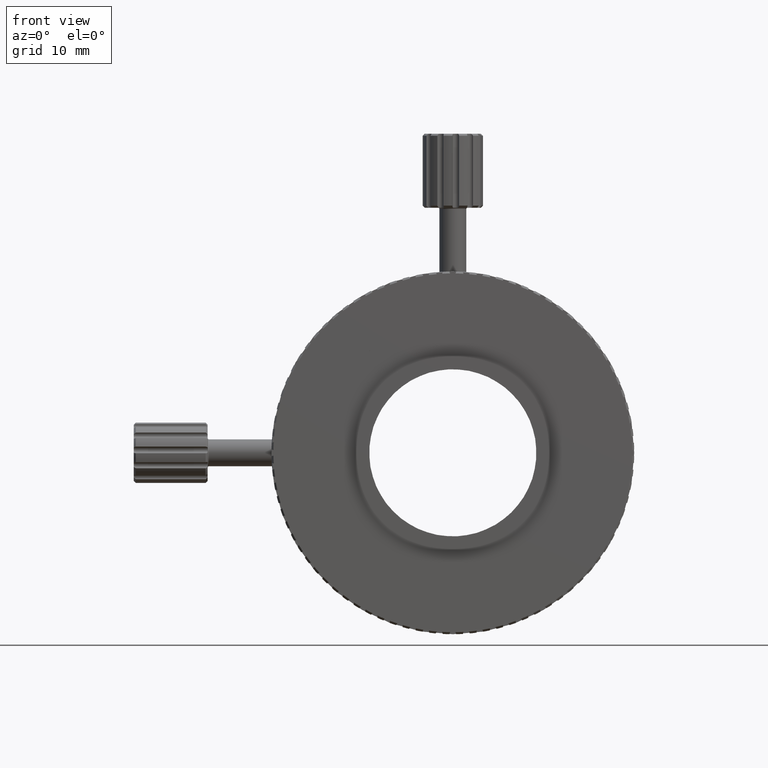
[diagram: clean part render]
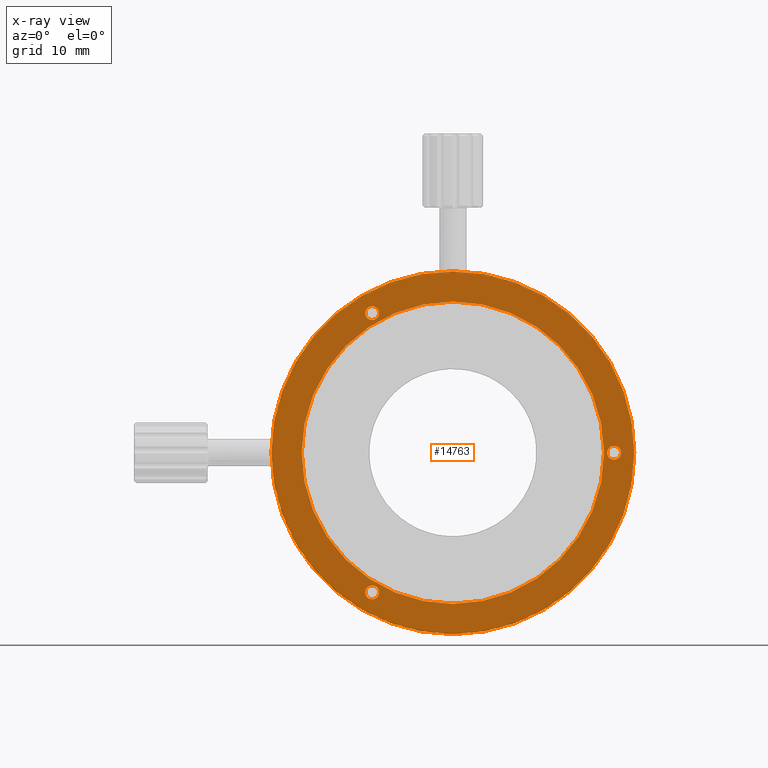
[diagram: x-ray — body ghosted, one internal face saturated and labeled with its STEP entity id]
A machine part, front view, then the same camera in x-ray: the body is ghosted and one INTERNAL B-rep face — a face not visible from any outside direction — is saturated and labeled: STEP entity #14763.
In plain terms, the highlighted planar face has unit normal (-0, 1, 0).
Its self-contained STEP definition (entity closure, byte-faithful):
#247 = AXIS2_PLACEMENT_3D ( 'NONE', #506, #2385, #14755 ) ;
#362 = CARTESIAN_POINT ( 'NONE',  ( -13.14703675089519486, 14.07014266807713199, 76.45373576090617007 ) ) ;
#371 = CARTESIAN_POINT ( 'NONE',  ( 9.352963249104790933, 14.07014266807713199, 103.4537357609061559 ) ) ;
#427 = CARTESIAN_POINT ( 'NONE',  ( -2.647036750895011448, 14.07014266807713199, 96.21334545173279196 ) ) ;
#506 = CARTESIAN_POINT ( 'NONE',  ( -2.647036750895302770, 14.07014266807713199, 55.66912607007969882 ) ) ;
#513 = ORIENTED_EDGE ( 'NONE', *, *, #16004, .F. ) ;
#638 = VERTEX_POINT ( 'NONE', #22881 ) ;
#749 = DIRECTION ( 'NONE',  ( -0.000000000000000000, 1.000000000000000000, -0.000000000000000000 ) ) ;
#1228 = ORIENTED_EDGE ( 'NONE', *, *, #16177, .F. ) ;
#2207 = EDGE_CURVE ( 'NONE', #3101, #15654, #7212, .T. ) ;
#2385 = DIRECTION ( 'NONE',  ( -0.000000000000000000, 1.000000000000000000, -0.000000000000000000 ) ) ;
#2511 = VERTEX_POINT ( 'NONE', #6269 ) ;
#2736 = DIRECTION ( 'NONE',  ( 0.000000000000000000, 0.000000000000000000, 1.000000000000000000 ) ) ;
#2753 = AXIS2_PLACEMENT_3D ( 'NONE', #18838, #6216, #13236 ) ;
#3044 = EDGE_CURVE ( 'NONE', #10143, #22187, #13085, .T. ) ;
#3101 = VERTEX_POINT ( 'NONE', #22683 ) ;
#3363 = AXIS2_PLACEMENT_3D ( 'NONE', #6244, #20491, #2736 ) ;
#3599 = AXIS2_PLACEMENT_3D ( 'NONE', #6972, #13981, #21220 ) ;
#3865 = ORIENTED_EDGE ( 'NONE', *, *, #21526, .F. ) ;
#4086 = CARTESIAN_POINT ( 'NONE',  ( -2.647036750895302770, 14.07014266807713199, 54.64412607007970024 ) ) ;
#5000 = EDGE_LOOP ( 'NONE', ( #14601, #18834 ) ) ;
#5034 = CARTESIAN_POINT ( 'NONE',  ( 33.35296324910477495, 14.07014266807713199, 76.45373576090617007 ) ) ;
#5609 = PLANE ( 'NONE',  #19583 ) ;
#5850 = CIRCLE ( 'NONE', #247, 1.024999999999998135 ) ;
#5970 = FACE_BOUND ( 'NONE', #7544, .T. ) ;
#6059 = VERTEX_POINT ( 'NONE', #22373 ) ;
#6145 = EDGE_LOOP ( 'NONE', ( #21012, #19547 ) ) ;
#6216 = DIRECTION ( 'NONE',  ( -0.000000000000000000, 1.000000000000000000, -0.000000000000000000 ) ) ;
#6244 = CARTESIAN_POINT ( 'NONE',  ( 33.35296324910477495, 14.07014266807713199, 76.45373576090617007 ) ) ;
#6269 = CARTESIAN_POINT ( 'NONE',  ( 9.352963249104794485, 14.07014266807713199, 53.95373576090618428 ) ) ;
#6305 = CIRCLE ( 'NONE', #22693, 1.024999999999998135 ) ;
#6972 = CARTESIAN_POINT ( 'NONE',  ( 9.352963249104790933, 14.07014266807713199, 76.45373576090617007 ) ) ;
#7212 = CIRCLE ( 'NONE', #22494, 1.024999999999998135 ) ;
#7355 = CARTESIAN_POINT ( 'NONE',  ( 9.352963249104790933, 14.07014266807713199, 98.95373576090615586 ) ) ;
#7544 = EDGE_LOOP ( 'NONE', ( #8854, #3865 ) ) ;
#7753 = AXIS2_PLACEMENT_3D ( 'NONE', #22215, #749, #11378 ) ;
#8209 = DIRECTION ( 'NONE',  ( -0.000000000000000000, 1.000000000000000000, -0.000000000000000000 ) ) ;
#8444 = AXIS2_PLACEMENT_3D ( 'NONE', #16061, #14644, #9128 ) ;
#8824 = DIRECTION ( 'NONE',  ( 0.000000000000000000, 0.000000000000000000, 1.000000000000000000 ) ) ;
#8854 = ORIENTED_EDGE ( 'NONE', *, *, #2207, .F. ) ;
#9128 = DIRECTION ( 'NONE',  ( 0.000000000000000000, 0.000000000000000000, 1.000000000000000000 ) ) ;
#9737 = EDGE_CURVE ( 'NONE', #10044, #2511, #10947, .T. ) ;
#10044 = VERTEX_POINT ( 'NONE', #7355 ) ;
#10143 = VERTEX_POINT ( 'NONE', #15310 ) ;
#10287 = DIRECTION ( 'NONE',  ( -0.000000000000000000, 1.000000000000000000, -0.000000000000000000 ) ) ;
#10947 = CIRCLE ( 'NONE', #2753, 22.49999999999999289 ) ;
#11142 = CIRCLE ( 'NONE', #16758, 1.024999999999998135 ) ;
#11230 = FACE_BOUND ( 'NONE', #14312, .T. ) ;
#11378 = DIRECTION ( 'NONE',  ( 0.000000000000000000, 0.000000000000000000, 1.000000000000000000 ) ) ;
#11863 = ORIENTED_EDGE ( 'NONE', *, *, #3044, .F. ) ;
#12194 = EDGE_LOOP ( 'NONE', ( #1228, #513 ) ) ;
#12393 = CARTESIAN_POINT ( 'NONE',  ( 9.352963249104790933, 14.07014266807713199, 76.45373576090617007 ) ) ;
#12997 = DIRECTION ( 'NONE',  ( -0.000000000000000000, 1.000000000000000000, -0.000000000000000000 ) ) ;
#13085 = CIRCLE ( 'NONE', #3363, 1.024999999999998135 ) ;
#13236 = DIRECTION ( 'NONE',  ( 0.000000000000000000, 0.000000000000000000, 1.000000000000000000 ) ) ;
#13451 = EDGE_CURVE ( 'NONE', #2511, #10044, #18582, .T. ) ;
#13981 = DIRECTION ( 'NONE',  ( -0.000000000000000000, 1.000000000000000000, -0.000000000000000000 ) ) ;
#14312 = EDGE_LOOP ( 'NONE', ( #11863, #15388 ) ) ;
#14461 = AXIS2_PLACEMENT_3D ( 'NONE', #12393, #10287, #21149 ) ;
#14601 = ORIENTED_EDGE ( 'NONE', *, *, #9737, .F. ) ;
#14625 = CARTESIAN_POINT ( 'NONE',  ( -2.647036750895011448, 14.07014266807713199, 97.23834545173279764 ) ) ;
#14644 = DIRECTION ( 'NONE',  ( -0.000000000000000000, 1.000000000000000000, -0.000000000000000000 ) ) ;
#14755 = DIRECTION ( 'NONE',  ( 0.000000000000000000, 0.000000000000000000, 1.000000000000000000 ) ) ;
#14763 = ADVANCED_FACE ( 'NONE', ( #5970, #22072, #11230, #16728, #19753 ), #5609, .T. ) ;
#15310 = CARTESIAN_POINT ( 'NONE',  ( 33.35296324910477495, 14.07014266807713199, 77.47873576090616154 ) ) ;
#15388 = ORIENTED_EDGE ( 'NONE', *, *, #18083, .F. ) ;
#15554 = CIRCLE ( 'NONE', #8444, 1.024999999999998135 ) ;
#15654 = VERTEX_POINT ( 'NONE', #427 ) ;
#15923 = CIRCLE ( 'NONE', #3599, 26.99999999999999645 ) ;
#16004 = EDGE_CURVE ( 'NONE', #22314, #638, #15554, .T. ) ;
#16061 = CARTESIAN_POINT ( 'NONE',  ( -2.647036750895302770, 14.07014266807713199, 55.66912607007969882 ) ) ;
#16177 = EDGE_CURVE ( 'NONE', #638, #22314, #5850, .T. ) ;
#16490 = DIRECTION ( 'NONE',  ( 0.000000000000000000, 0.000000000000000000, 1.000000000000000000 ) ) ;
#16728 = FACE_OUTER_BOUND ( 'NONE', #6145, .T. ) ;
#16744 = EDGE_CURVE ( 'NONE', #6059, #18422, #18951, .T. ) ;
#16758 = AXIS2_PLACEMENT_3D ( 'NONE', #17960, #19473, #8824 ) ;
#17960 = CARTESIAN_POINT ( 'NONE',  ( -2.647036750895011448, 14.07014266807713199, 97.23834545173279764 ) ) ;
#18083 = EDGE_CURVE ( 'NONE', #22187, #10143, #6305, .T. ) ;
#18422 = VERTEX_POINT ( 'NONE', #371 ) ;
#18582 = CIRCLE ( 'NONE', #14461, 22.49999999999999289 ) ;
#18834 = ORIENTED_EDGE ( 'NONE', *, *, #13451, .F. ) ;
#18838 = CARTESIAN_POINT ( 'NONE',  ( 9.352963249104790933, 14.07014266807713199, 76.45373576090617007 ) ) ;
#18951 = CIRCLE ( 'NONE', #7753, 26.99999999999999645 ) ;
#19473 = DIRECTION ( 'NONE',  ( -0.000000000000000000, 1.000000000000000000, -0.000000000000000000 ) ) ;
#19547 = ORIENTED_EDGE ( 'NONE', *, *, #16744, .T. ) ;
#19583 = AXIS2_PLACEMENT_3D ( 'NONE', #362, #19978, #16490 ) ;
#19753 = FACE_BOUND ( 'NONE', #5000, .T. ) ;
#19978 = DIRECTION ( 'NONE',  ( -0.000000000000000000, 1.000000000000000000, 0.000000000000000000 ) ) ;
#20117 = DIRECTION ( 'NONE',  ( 0.000000000000000000, 0.000000000000000000, 1.000000000000000000 ) ) ;
#20304 = EDGE_CURVE ( 'NONE', #18422, #6059, #15923, .T. ) ;
#20491 = DIRECTION ( 'NONE',  ( -0.000000000000000000, 1.000000000000000000, -0.000000000000000000 ) ) ;
#20587 = DIRECTION ( 'NONE',  ( 0.000000000000000000, 0.000000000000000000, 1.000000000000000000 ) ) ;
#21012 = ORIENTED_EDGE ( 'NONE', *, *, #20304, .T. ) ;
#21149 = DIRECTION ( 'NONE',  ( 0.000000000000000000, 0.000000000000000000, 1.000000000000000000 ) ) ;
#21220 = DIRECTION ( 'NONE',  ( 0.000000000000000000, 0.000000000000000000, 1.000000000000000000 ) ) ;
#21526 = EDGE_CURVE ( 'NONE', #15654, #3101, #11142, .T. ) ;
#22072 = FACE_BOUND ( 'NONE', #12194, .T. ) ;
#22187 = VERTEX_POINT ( 'NONE', #22533 ) ;
#22215 = CARTESIAN_POINT ( 'NONE',  ( 9.352963249104790933, 14.07014266807713199, 76.45373576090617007 ) ) ;
#22314 = VERTEX_POINT ( 'NONE', #4086 ) ;
#22373 = CARTESIAN_POINT ( 'NONE',  ( 9.352963249104794485, 14.07014266807713199, 49.45373576090617718 ) ) ;
#22494 = AXIS2_PLACEMENT_3D ( 'NONE', #14625, #12997, #20117 ) ;
#22533 = CARTESIAN_POINT ( 'NONE',  ( 33.35296324910477495, 14.07014266807713199, 75.42873576090616439 ) ) ;
#22683 = CARTESIAN_POINT ( 'NONE',  ( -2.647036750895011448, 14.07014266807713199, 98.26334545173278912 ) ) ;
#22693 = AXIS2_PLACEMENT_3D ( 'NONE', #5034, #8209, #20587 ) ;
#22881 = CARTESIAN_POINT ( 'NONE',  ( -2.647036750895302770, 14.07014266807713199, 56.69412607007969740 ) ) ;